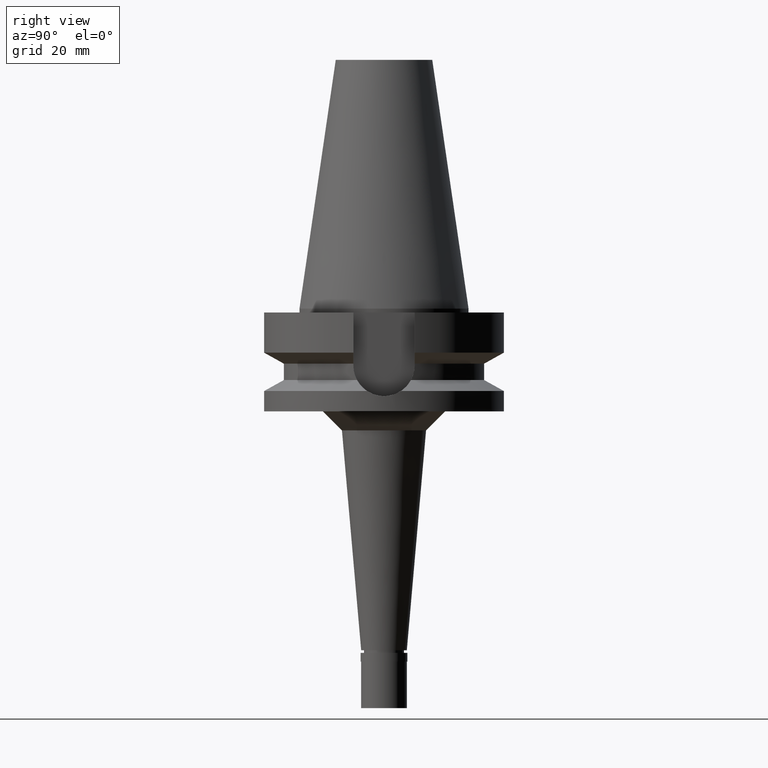
[diagram: clean part render]
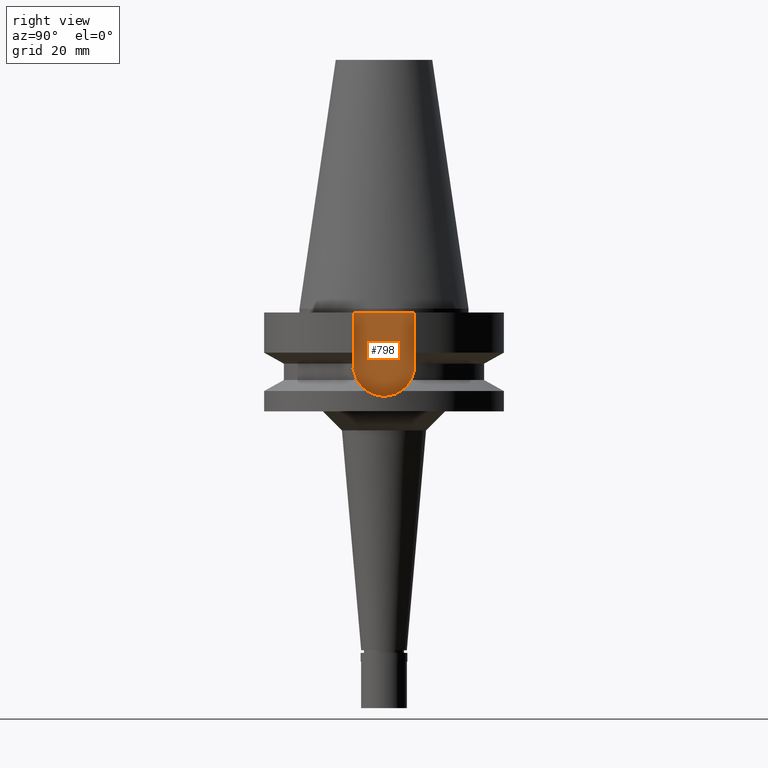
[diagram: same view with one face highlighted and labeled with its STEP entity id]
A machine part, right view. The second image highlights one B-rep face of the part: STEP entity #798.
In plain terms, the highlighted planar face has unit normal (1, 0, 0).
Its self-contained STEP definition (entity closure, byte-faithful):
#17 = EDGE_CURVE ( 'NONE', #1060, #2310, #1207, .T. ) ;
#110 = DIRECTION ( 'NONE',  ( 0.0000000000000000000, -1.000000000000000000, 0.0000000000000000000 ) ) ;
#253 = AXIS2_PLACEMENT_3D ( 'NONE', #1475, #1036, #2003 ) ;
#336 = LINE ( 'NONE', #2193, #2658 ) ;
#383 = EDGE_CURVE ( 'NONE', #1060, #1180, #336, .T. ) ;
#418 = ORIENTED_EDGE ( 'NONE', *, *, #383, .T. ) ;
#475 = ORIENTED_EDGE ( 'NONE', *, *, #17, .F. ) ;
#481 = LINE ( 'NONE', #2360, #1890 ) ;
#590 = PLANE ( 'NONE',  #253 ) ;
#604 = FACE_OUTER_BOUND ( 'NONE', #1225, .T. ) ;
#655 = CARTESIAN_POINT ( 'NONE',  ( 22.50000000000000000, 8.050000000000000711, -1.000000000000000000 ) ) ;
#717 = VECTOR ( 'NONE', #2354, 1000.000000000000000 ) ;
#798 = ADVANCED_FACE ( 'NONE', ( #604 ), #590, .T. ) ;
#869 = CARTESIAN_POINT ( 'NONE',  ( 22.50000000000000000, 0.0000000000000000000, -14.94999999999999929 ) ) ;
#948 = AXIS2_PLACEMENT_3D ( 'NONE', #869, #1568, #2103 ) ;
#1036 = DIRECTION ( 'NONE',  ( 1.000000000000000000, 0.0000000000000000000, 0.0000000000000000000 ) ) ;
#1060 = VERTEX_POINT ( 'NONE', #655 ) ;
#1064 = EDGE_CURVE ( 'NONE', #2310, #1338, #2276, .T. ) ;
#1179 = CARTESIAN_POINT ( 'NONE',  ( 22.50000000000000000, -8.050000000000000711, -1.000000000000000000 ) ) ;
#1180 = VERTEX_POINT ( 'NONE', #1179 ) ;
#1207 = LINE ( 'NONE', #2167, #717 ) ;
#1225 = EDGE_LOOP ( 'NONE', ( #1405, #2341, #475, #418 ) ) ;
#1338 = VERTEX_POINT ( 'NONE', #1508 ) ;
#1396 = DIRECTION ( 'NONE',  ( 0.0000000000000000000, 0.0000000000000000000, 1.000000000000000000 ) ) ;
#1405 = ORIENTED_EDGE ( 'NONE', *, *, #1435, .F. ) ;
#1435 = EDGE_CURVE ( 'NONE', #1338, #1180, #481, .T. ) ;
#1474 = CARTESIAN_POINT ( 'NONE',  ( 22.50000000000000000, 8.050000000000000711, -14.94999999999999929 ) ) ;
#1475 = CARTESIAN_POINT ( 'NONE',  ( 22.50000000000000000, 0.0000000000000000000, 0.0000000000000000000 ) ) ;
#1508 = CARTESIAN_POINT ( 'NONE',  ( 22.50000000000000000, -8.050000000000000711, -14.94999999999999929 ) ) ;
#1568 = DIRECTION ( 'NONE',  ( -1.000000000000000000, 0.0000000000000000000, 0.0000000000000000000 ) ) ;
#1890 = VECTOR ( 'NONE', #1396, 1000.000000000000000 ) ;
#2003 = DIRECTION ( 'NONE',  ( 0.0000000000000000000, 1.000000000000000000, 0.0000000000000000000 ) ) ;
#2103 = DIRECTION ( 'NONE',  ( 0.0000000000000000000, 0.0000000000000000000, -1.000000000000000000 ) ) ;
#2167 = CARTESIAN_POINT ( 'NONE',  ( 22.50000000000000000, 8.050000000000000711, -1.000000000000000000 ) ) ;
#2193 = CARTESIAN_POINT ( 'NONE',  ( 22.50000000000000000, 8.050000000000000711, -1.000000000000000000 ) ) ;
#2276 = CIRCLE ( 'NONE', #948, 8.050000000000000711 ) ;
#2310 = VERTEX_POINT ( 'NONE', #1474 ) ;
#2341 = ORIENTED_EDGE ( 'NONE', *, *, #1064, .F. ) ;
#2354 = DIRECTION ( 'NONE',  ( 0.0000000000000000000, 0.0000000000000000000, -1.000000000000000000 ) ) ;
#2360 = CARTESIAN_POINT ( 'NONE',  ( 22.50000000000000000, -8.050000000000000711, -14.94999999999999929 ) ) ;
#2658 = VECTOR ( 'NONE', #110, 1000.000000000000000 ) ;